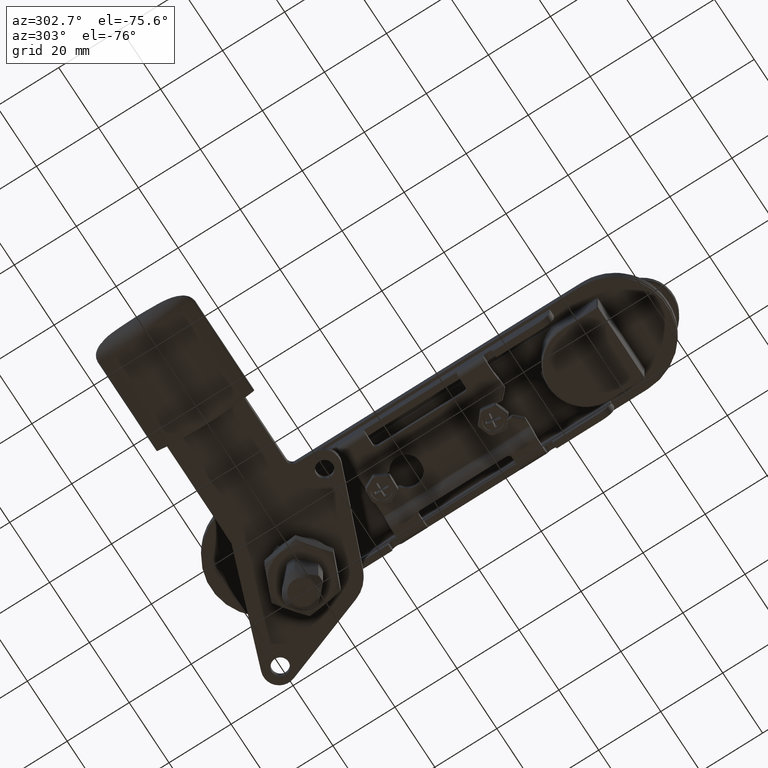
[diagram: clean part render]
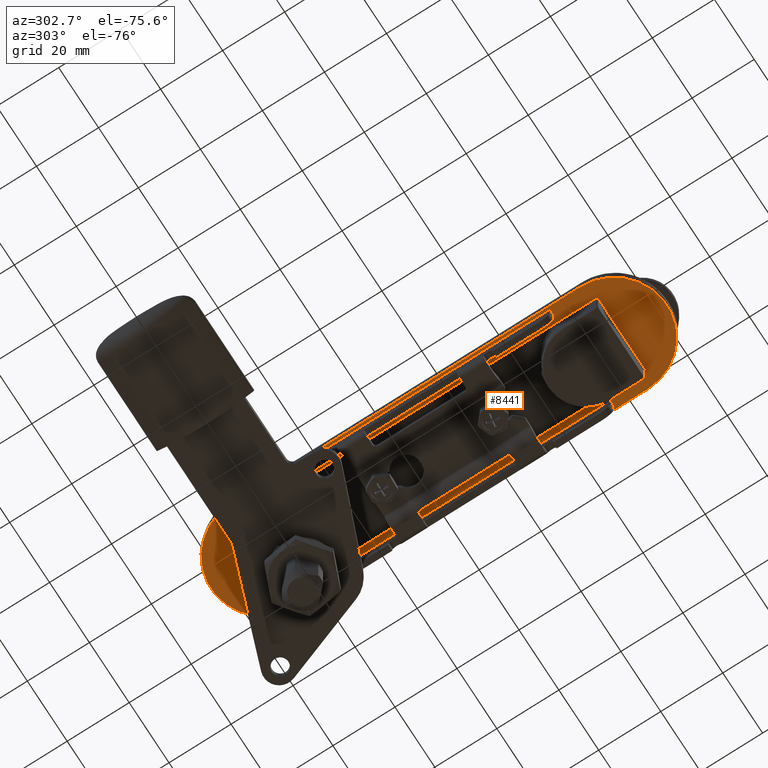
[diagram: same view with one face highlighted and labeled with its STEP entity id]
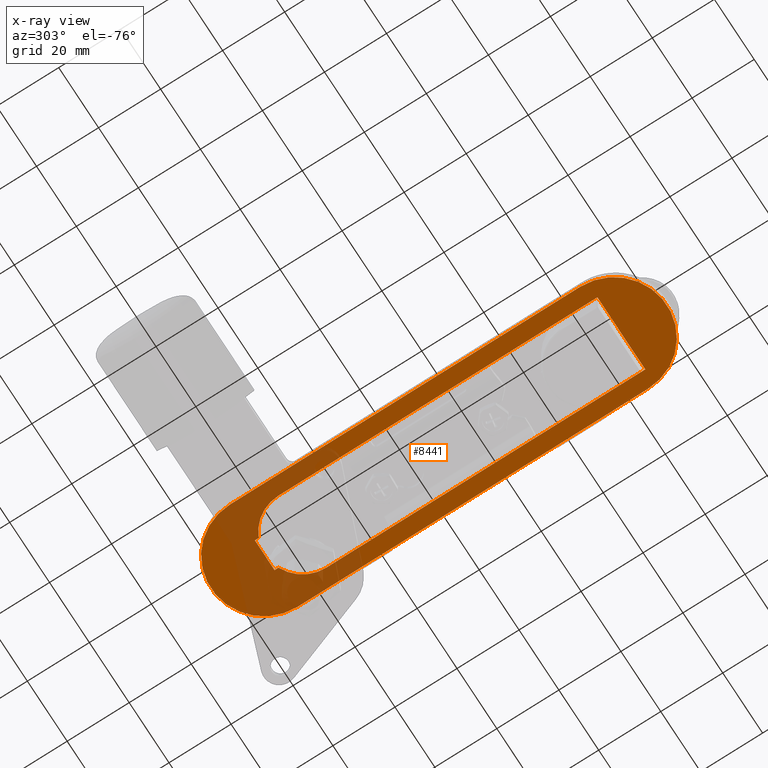
[diagram: x-ray of the same camera — body ghosted, the highlighted face saturated]
A machine part, auxiliary view. The second image highlights one B-rep face of the part: STEP entity #8441.
The next image is the same camera in x-ray: the body ghosted, the highlighted face saturated — about 29% of this face is hidden behind the body in this view.
In plain terms, the highlighted planar face has unit normal (0, 0, 1).
Its self-contained STEP definition (entity closure, byte-faithful):
#675=FACE_BOUND('',#2123,.T.);
#1055=CIRCLE('',#9292,12.);
#1057=CIRCLE('',#9298,12.);
#1059=CIRCLE('',#9302,17.);
#1061=CIRCLE('',#9306,17.);
#1554=FACE_OUTER_BOUND('',#2122,.T.);
#2122=EDGE_LOOP('',(#7710,#7711,#7712,#7713));
#2123=EDGE_LOOP('',(#7714,#7715,#7716,#7717,#7718,#7719,#7720,#7721));
#2708=LINE('',#16872,#3318);
#2712=LINE('',#16880,#3322);
#2716=LINE('',#16892,#3326);
#2719=LINE('',#16898,#3329);
#2722=LINE('',#16904,#3332);
#2726=LINE('',#16915,#3336);
#2730=LINE('',#16928,#3340);
#2734=LINE('',#16939,#3344);
#3318=VECTOR('',#11579,10.);
#3322=VECTOR('',#11585,1.29128788536429);
#3326=VECTOR('',#11597,102.8);
#3329=VECTOR('',#11602,24.);
#3332=VECTOR('',#11607,102.8);
#3336=VECTOR('',#11619,1.29128788536428);
#3340=VECTOR('',#11631,113.);
#3344=VECTOR('',#11643,113.);
#4104=VERTEX_POINT('',#16870);
#4105=VERTEX_POINT('',#16871);
#4108=VERTEX_POINT('',#16879);
#4110=VERTEX_POINT('',#16885);
#4112=VERTEX_POINT('',#16891);
#4114=VERTEX_POINT('',#16897);
#4116=VERTEX_POINT('',#16903);
#4118=VERTEX_POINT('',#16909);
#4120=VERTEX_POINT('',#16918);
#4121=VERTEX_POINT('',#16919);
#4124=VERTEX_POINT('',#16927);
#4126=VERTEX_POINT('',#16933);
#5294=EDGE_CURVE('',#4104,#4105,#2708,.T.);
#5298=EDGE_CURVE('',#4105,#4108,#2712,.T.);
#5301=EDGE_CURVE('',#4108,#4110,#1055,.T.);
#5304=EDGE_CURVE('',#4110,#4112,#2716,.T.);
#5307=EDGE_CURVE('',#4112,#4114,#2719,.T.);
#5310=EDGE_CURVE('',#4114,#4116,#2722,.T.);
#5313=EDGE_CURVE('',#4116,#4118,#1057,.T.);
#5316=EDGE_CURVE('',#4118,#4104,#2726,.T.);
#5318=EDGE_CURVE('',#4120,#4121,#1059,.T.);
#5322=EDGE_CURVE('',#4121,#4124,#2730,.T.);
#5325=EDGE_CURVE('',#4124,#4126,#1061,.T.);
#5328=EDGE_CURVE('',#4126,#4120,#2734,.T.);
#7710=ORIENTED_EDGE('',*,*,#5328,.T.);
#7711=ORIENTED_EDGE('',*,*,#5318,.T.);
#7712=ORIENTED_EDGE('',*,*,#5322,.T.);
#7713=ORIENTED_EDGE('',*,*,#5325,.T.);
#7714=ORIENTED_EDGE('',*,*,#5307,.T.);
#7715=ORIENTED_EDGE('',*,*,#5310,.T.);
#7716=ORIENTED_EDGE('',*,*,#5313,.T.);
#7717=ORIENTED_EDGE('',*,*,#5316,.T.);
#7718=ORIENTED_EDGE('',*,*,#5294,.T.);
#7719=ORIENTED_EDGE('',*,*,#5298,.T.);
#7720=ORIENTED_EDGE('',*,*,#5301,.T.);
#7721=ORIENTED_EDGE('',*,*,#5304,.T.);
#7948=PLANE('',#9309);
#8441=ADVANCED_FACE('',(#1554,#675),#7948,.F.);
#9292=AXIS2_PLACEMENT_3D('',#16886,#11590,#11591);
#9298=AXIS2_PLACEMENT_3D('',#16910,#11612,#11613);
#9302=AXIS2_PLACEMENT_3D('',#16920,#11623,#11624);
#9306=AXIS2_PLACEMENT_3D('',#16934,#11636,#11637);
#9309=AXIS2_PLACEMENT_3D('',#16941,#11645,#11646);
#11579=DIRECTION('',(-1.,0.,0.));
#11585=DIRECTION('',(-8.5977963334795E-16,-1.,0.));
#11590=DIRECTION('center_axis',(0.,0.,1.));
#11591=DIRECTION('ref_axis',(-0.416666666666667,0.909059342886309,0.));
#11597=DIRECTION('',(2.1599669739789E-16,-1.,0.));
#11602=DIRECTION('',(1.,0.,0.));
#11607=DIRECTION('',(-3.45594715836625E-16,1.,0.));
#11612=DIRECTION('center_axis',(0.,0.,1.));
#11613=DIRECTION('ref_axis',(-0.416666666666667,0.909059342886309,0.));
#11619=DIRECTION('',(1.28966945002193E-15,1.,0.));
#11623=DIRECTION('center_axis',(0.,0.,-1.));
#11624=DIRECTION('ref_axis',(-1.,-5.2245789394125E-16,0.));
#11631=DIRECTION('',(2.75099510526587E-16,-1.,0.));
#11636=DIRECTION('center_axis',(0.,0.,-1.));
#11637=DIRECTION('ref_axis',(1.,0.,0.));
#11643=DIRECTION('',(-1.57199720300907E-16,1.,0.));
#11645=DIRECTION('center_axis',(0.,0.,1.));
#11646=DIRECTION('ref_axis',(1.,0.,0.));
#16870=CARTESIAN_POINT('',(4.99999999999998,56.2,0.));
#16871=CARTESIAN_POINT('',(-5.00000000000002,56.2,0.));
#16872=CARTESIAN_POINT('',(-2.50000000000002,56.2,0.));
#16879=CARTESIAN_POINT('',(-5.00000000000002,54.9087121146357,0.));
#16880=CARTESIAN_POINT('',(-5.00000000000004,27.4543560573179,0.));
#16885=CARTESIAN_POINT('',(-12.,44.,0.));
#16886=CARTESIAN_POINT('Origin',(-1.35244455746751E-14,44.,0.));
#16891=CARTESIAN_POINT('',(-12.,-58.8,0.));
#16892=CARTESIAN_POINT('',(-12.,-29.4,0.));
#16897=CARTESIAN_POINT('',(12.,-58.8,0.));
#16898=CARTESIAN_POINT('',(6.,-58.8,0.));
#16903=CARTESIAN_POINT('',(12.,44.,0.));
#16904=CARTESIAN_POINT('',(12.,22.,0.));
#16909=CARTESIAN_POINT('',(4.99999999999998,54.9087121146357,0.));
#16910=CARTESIAN_POINT('Origin',(-1.35244455746751E-14,44.,0.));
#16915=CARTESIAN_POINT('',(4.99999999999994,28.1,0.));
#16918=CARTESIAN_POINT('',(-17.,56.5,0.));
#16919=CARTESIAN_POINT('',(17.,56.5,0.));
#16920=CARTESIAN_POINT('Origin',(-2.07577632455476E-14,56.5,0.));
#16927=CARTESIAN_POINT('',(17.,-56.5,0.));
#16928=CARTESIAN_POINT('',(17.,56.5,0.));
#16933=CARTESIAN_POINT('',(-17.,-56.5,0.));
#16934=CARTESIAN_POINT('Origin',(0.,-56.5,0.));
#16939=CARTESIAN_POINT('',(-17.,-56.5,0.));
#16941=CARTESIAN_POINT('Origin',(-1.29655960806029E-14,0.,0.));